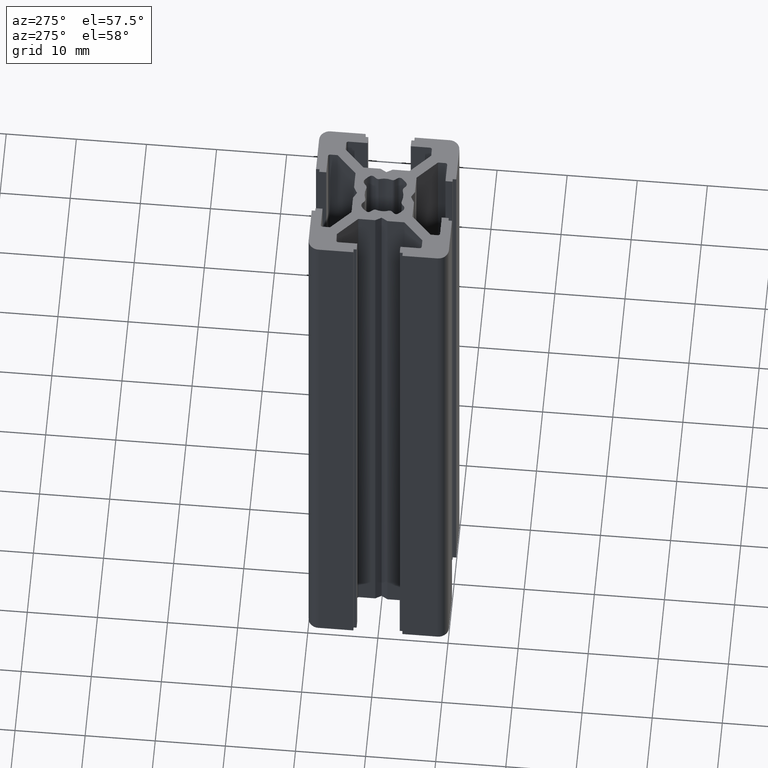
[diagram: clean part render]
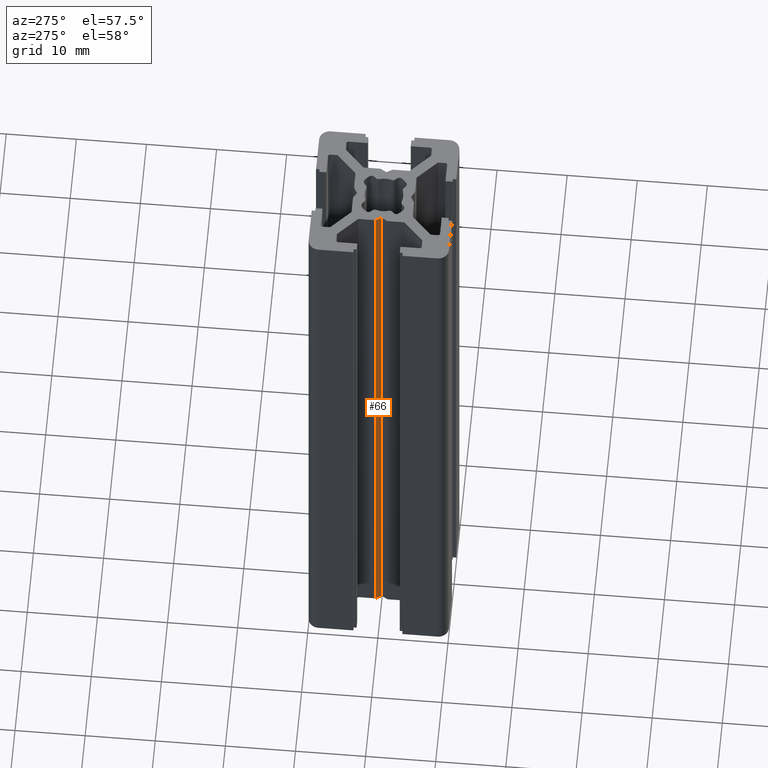
[diagram: same view with one face highlighted and labeled with its STEP entity id]
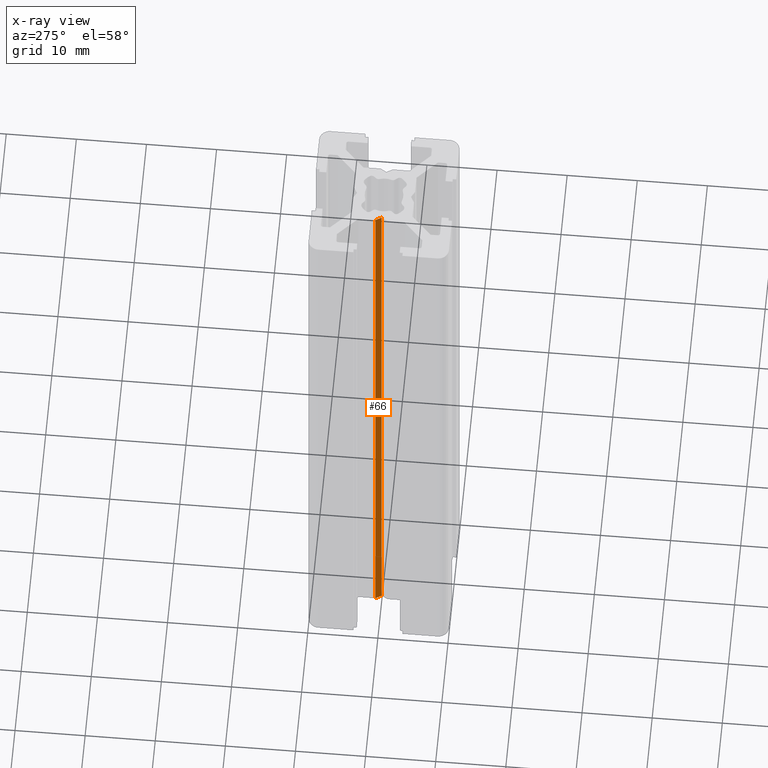
[diagram: x-ray of the same camera — body ghosted, the highlighted face saturated]
A machine part, auxiliary view. The second image highlights one B-rep face of the part: STEP entity #66.
The next image is the same camera in x-ray: the body ghosted, the highlighted face saturated — about 0% of this face is hidden behind the body in this view.
In plain terms, the highlighted planar face has unit normal (0.866, 0.5, -0).
Its self-contained STEP definition (entity closure, byte-faithful):
#66 = ADVANCED_FACE ( 'NONE', ( #1670 ), #1658, .F. ) ;
#71 = EDGE_LOOP ( 'NONE', ( #422, #487, #1478, #648 ) ) ;
#115 = EDGE_CURVE ( 'NONE', #1454, #1455, #1761, .T. ) ;
#419 = EDGE_CURVE ( 'NONE', #437, #429, #2279, .T. ) ;
#422 = ORIENTED_EDGE ( 'NONE', *, *, #419, .T. ) ;
#429 = VERTEX_POINT ( 'NONE', #2316 ) ;
#437 = VERTEX_POINT ( 'NONE', #2307 ) ;
#487 = ORIENTED_EDGE ( 'NONE', *, *, #604, .F. ) ;
#598 = EDGE_CURVE ( 'NONE', #1454, #437, #2565, .T. ) ;
#604 = EDGE_CURVE ( 'NONE', #1455, #429, #2596, .T. ) ;
#648 = ORIENTED_EDGE ( 'NONE', *, *, #598, .T. ) ;
#1454 = VERTEX_POINT ( 'NONE', #3872 ) ;
#1455 = VERTEX_POINT ( 'NONE', #3827 ) ;
#1478 = ORIENTED_EDGE ( 'NONE', *, *, #115, .F. ) ;
#1656 = AXIS2_PLACEMENT_3D ( 'NONE', #1713, #1712, #1711 ) ;
#1658 = PLANE ( 'NONE',  #1656 ) ;
#1670 = FACE_OUTER_BOUND ( 'NONE', #71, .T. ) ;
#1711 = DIRECTION ( 'NONE',  ( -0.5000001748438412900, 0.8660253028382762800, 0.0000000000000000000 ) ) ;
#1712 = DIRECTION ( 'NONE',  ( 0.8660253028382762800, 0.5000001748438412900, -0.0000000000000000000 ) ) ;
#1713 = CARTESIAN_POINT ( 'NONE',  ( -3.850000000000000100, 7.000000000000000300E-016, 100.0000000000000000 ) ) ;
#1714 = CARTESIAN_POINT ( 'NONE',  ( -3.850000000000000100, 7.000000000000000300E-016, 100.0000000000000000 ) ) ;
#1758 = DIRECTION ( 'NONE',  ( 0.5000001748438412900, -0.8660253028382761700, -0.0000000000000000000 ) ) ;
#1759 = VECTOR ( 'NONE', #1758, 1000.000000000000200 ) ;
#1761 = LINE ( 'NONE', #1714, #1759 ) ;
#2276 = DIRECTION ( 'NONE',  ( 0.5000001748438412900, -0.8660253028382761700, -0.0000000000000000000 ) ) ;
#2277 = VECTOR ( 'NONE', #2276, 1000.000000000000200 ) ;
#2278 = CARTESIAN_POINT ( 'NONE',  ( -3.850000000000000100, 7.000000000000000300E-016, 0.0000000000000000000 ) ) ;
#2279 = LINE ( 'NONE', #2278, #2277 ) ;
#2307 = CARTESIAN_POINT ( 'NONE',  ( -4.349999999999999600, 0.8660250000000007100, 0.0000000000000000000 ) ) ;
#2316 = CARTESIAN_POINT ( 'NONE',  ( -3.850000000000000100, 7.000000000000000300E-016, 0.0000000000000000000 ) ) ;
#2526 = CARTESIAN_POINT ( 'NONE',  ( -4.349999999999999600, 0.8660250000000007100, 100.0000000000000000 ) ) ;
#2565 = LINE ( 'NONE', #2526, #2605 ) ;
#2593 = DIRECTION ( 'NONE',  ( -0.0000000000000000000, -0.0000000000000000000, -1.000000000000000000 ) ) ;
#2594 = VECTOR ( 'NONE', #2593, 1000.000000000000000 ) ;
#2595 = CARTESIAN_POINT ( 'NONE',  ( -3.850000000000000100, 7.000000000000000300E-016, 100.0000000000000000 ) ) ;
#2596 = LINE ( 'NONE', #2595, #2594 ) ;
#2604 = DIRECTION ( 'NONE',  ( -0.0000000000000000000, -0.0000000000000000000, -1.000000000000000000 ) ) ;
#2605 = VECTOR ( 'NONE', #2604, 1000.000000000000000 ) ;
#3827 = CARTESIAN_POINT ( 'NONE',  ( -3.850000000000000100, 7.000000000000000300E-016, 100.0000000000000000 ) ) ;
#3872 = CARTESIAN_POINT ( 'NONE',  ( -4.349999999999999600, 0.8660250000000007100, 100.0000000000000000 ) ) ;